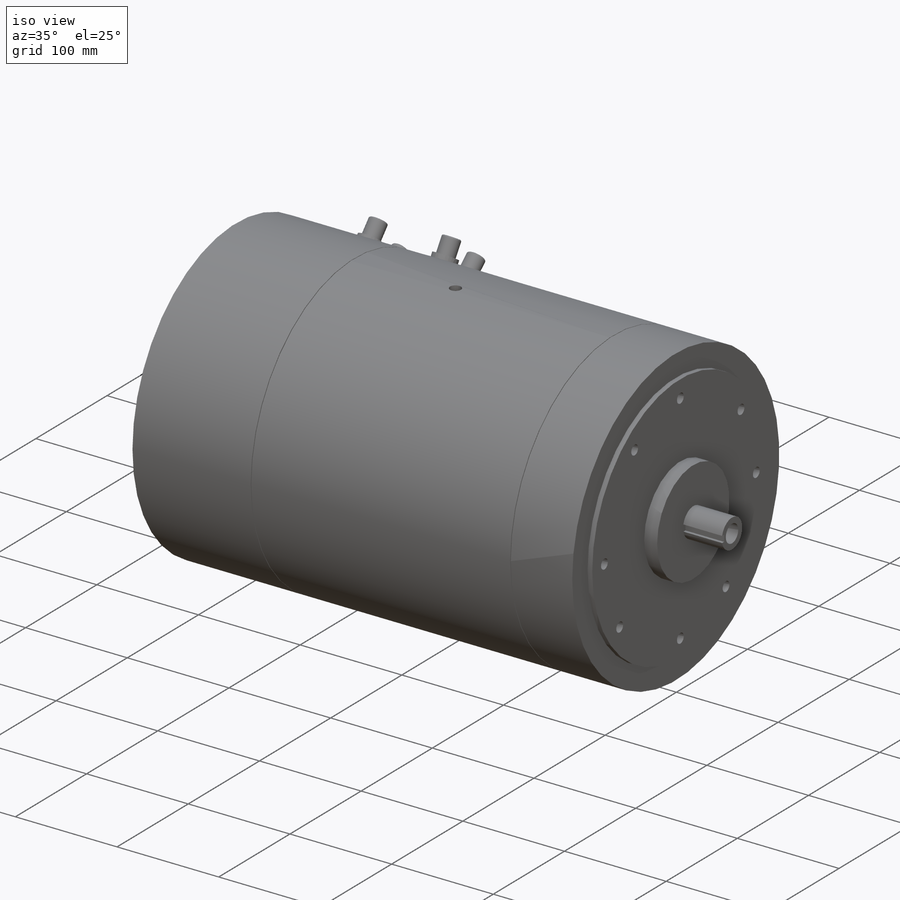
[diagram: iso view]
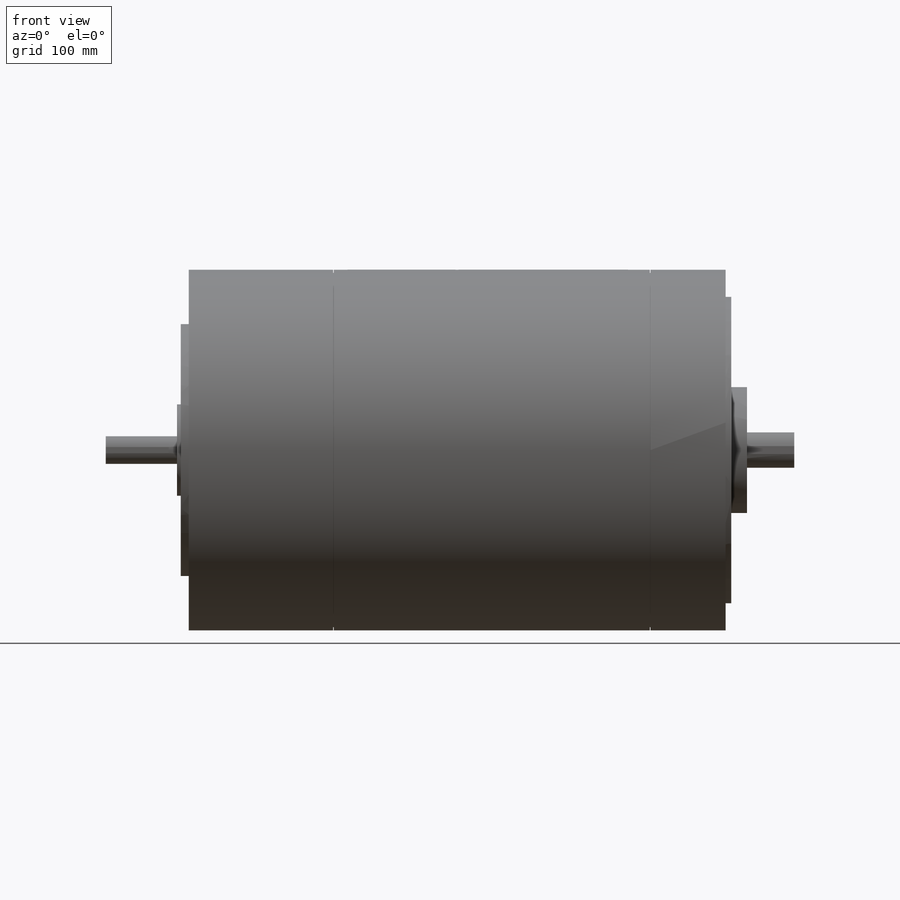
[diagram: front view]
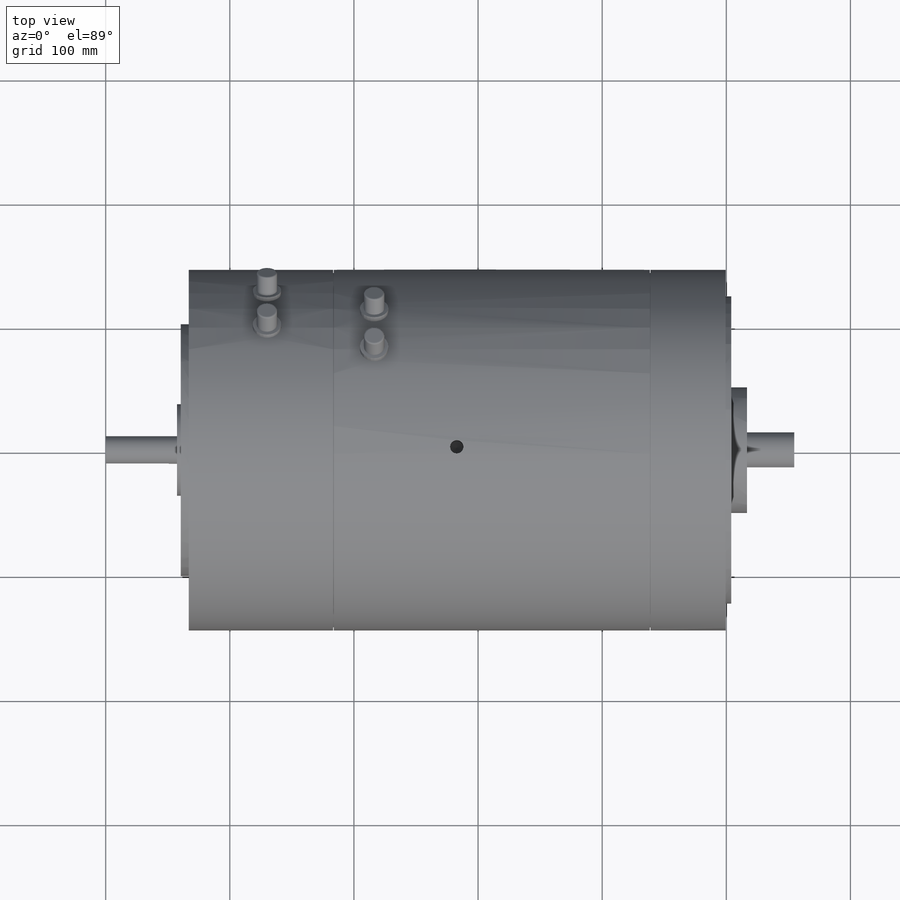
[diagram: top view]
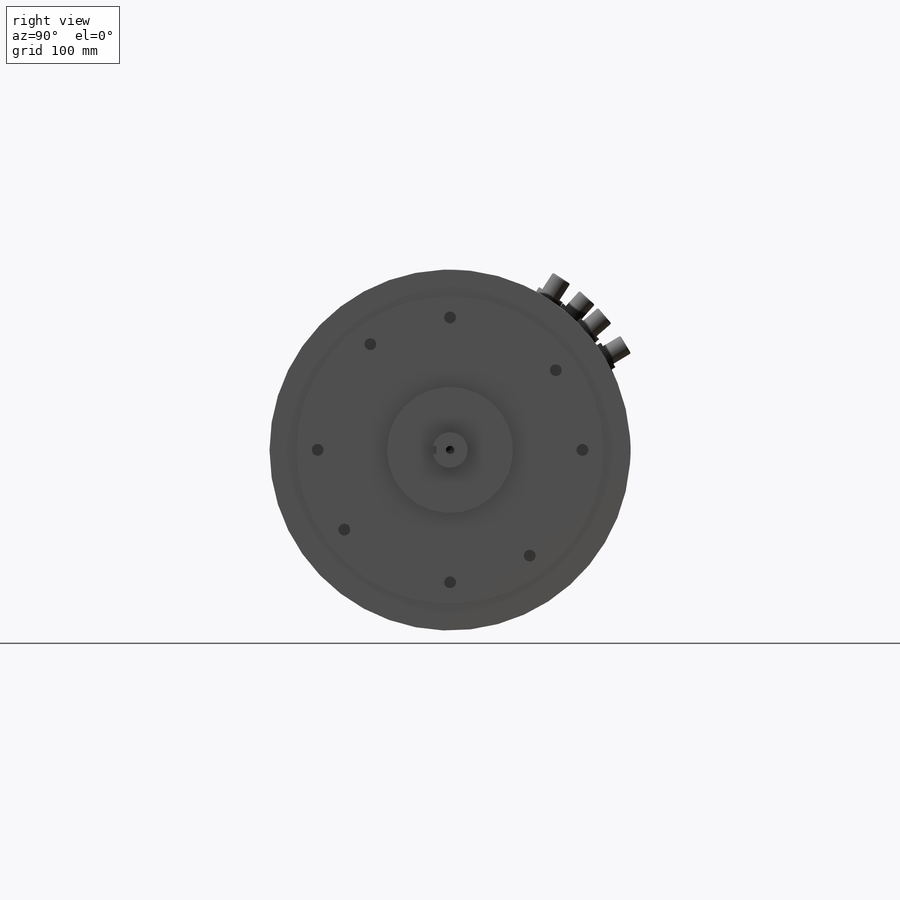
[diagram: right view]
SOLIDWORKS PART (.sldprt)
format: sldprt  version: not decoded by parser v0  size: 506,880 bytes
history: native  units: mm
features: sketch x16, plane x7, cut_extrude x5, hole x4, extrude x4, pattern_circular x2, material x1, revolve x1, fillet x1 (+16 scaffold rows collapsed; 2 parser-record rows omitted)
feature tree (59):
  scaffold x16  (default folders/planes/origin — collapsed)
  material  "Cast Alloy Steel"
  sketch  "Sketch2"  dims[D1=554.7614mm D2=28.575mm D3=38.1mm D4=50.8mm D5=55.372mm D6=432.4858mm D7=57.404mm D8=60.452mm D9=66.9036mm D10=22.225mm D11=290.83mm D12=247.65mm D13=101.6mm D14=73.66mm D15=203.2mm D16=0.508mm D17=60.96mm D18=2.54mm D19=0.508mm D20=2.54mm D21=116.84mm]
  revolve  "Revolve1"  Angle=360deg
  sketch  "Sketch4"  dims[c1.D1=213.36mm c1.D2=9.525mm c1.D3=45.0deg c1.D4=106.68mm c2.D3=~165.667293mm c3.D3=37.0deg c3.D4=213.36mm c3.D5=213.36mm c4.D5=53.0deg]
  cut_extrude  "Output mount holes"  Depth=20.32mm
  sketch  "Sketch5"  dims[c1.D1=152.4mm c1.D2=7.9375mm c1.D3=45.0deg c2.D3=~160.855364mm c3.D3=12.0deg]
  cut_extrude  "Aux output mount holes"  Depth=25.4mm
  sketch  "Sketch10"  dims[D1=17.4752mm]
  cut_extrude  "Pilot Hole"  Depth=19.05mm
  hole  "5/16-18 Tapped Hole4"  Diameter=6.5278mm Depth=32.4612mm
  sketch  "3DSketch3"
  sketch  "Sketch12"  dims[hole-wizard template sketch: 47 standard entries collapsed; hole parameters kept: c15.Tap Drill Depth=32.4612mm c15.D3=~14.816244mm c15.Drill Angle=118.0deg]
  plane  "DE Keyway Plane"  Offset=11.1125mm
  sketch  "Sketch13"  dims[D1=38.1mm D2=6.35mm]
  cut_extrude  "Drive End Keyway"  Depth=19.05mm
  hole  "1/4-20 Tapped Hole1"  Diameter=5.1054mm Depth=25.4mm
  sketch  "Sketch15"
  sketch  "Sketch14"  dims[hole-wizard template sketch: 47 standard entries collapsed; hole parameters kept: c15.Tap Drill Depth=25.4mm c15.D3=~14.816244mm c15.Drill Angle=118.0deg]
  plane  "CE Keyway Plane"  Offset=8.4709mm
  sketch  "Sketch16"  dims[D1=50.8mm D2=4.7752mm]
  cut_extrude  "CE Keyway"  Depth=19.05mm
  parser-record x2  (decoder bookkeeping rows leaked as tree rows — omitted from the tree; the rows remain in map.json)
  plane  "A1 Base Plane"
  plane  "A1 Plane"  Offset=139.7mm
  sketch  "Sketch17"  dims[c1.D3=16.51mm c1.D1=62.992mm c1.D2=86.36mm c2.D1=62.992mm]
  extrude  "A1 Post"  Depth=25.4mm
  sketch  "Sketch19"  dims[c1.D1=22.86mm c1.D3=22.86mm c2.D1=22.86mm c2.D2=62.992mm c2.D3=86.36mm]
  extrude  "A1 Base"  Depth=8.89mm
  fillet  "A1 Fillet"  Radius=1.27mm
  pattern_circular  "A2 Connector"  Count=2 Angle=17deg
  plane  "S1 Base Plane"
  plane  "S1 Plane"  Offset=139.7mm
  sketch  "Sketch20"  dims[D1=16.51mm D2=149.352mm]
  extrude  "S1 Post"  Depth=25.4mm
  sketch  "Sketch21"  dims[D1=22.86mm]
  extrude  "S1 Base"  Depth=9.525mm
  pattern_circular  "S1 Fillet"  Count=2 Angle=16deg
  plane  "Lifting Hole Plane"  Offset=145.415mm
  hole  "Lifting Hole"  Diameter=10.71626mm Depth=35.179mm
  sketch  "Sketch26"  dims[D1=215.9mm]
  sketch  "Sketch25"  dims[hole-wizard template sketch: 47 standard entries collapsed; hole parameters kept: c15.Tap Drill Depth=35.179mm c15.D3=~14.816244mm c15.Drill Angle=118.0deg]
  hole  "Lifting Hole 2"  Diameter=2
decode coverage: 31 of 33 modeling features carry decoded parameters
note: ~ marks probable driven/reference dimensions
note: suppression state not decoded; provenance and decode notes live in map.json
